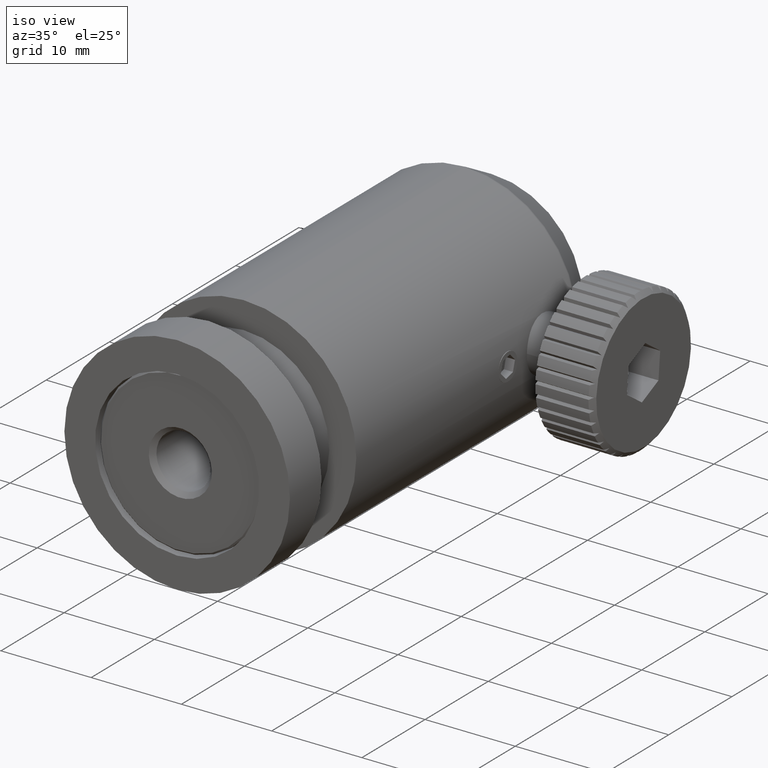
[diagram: clean part render]
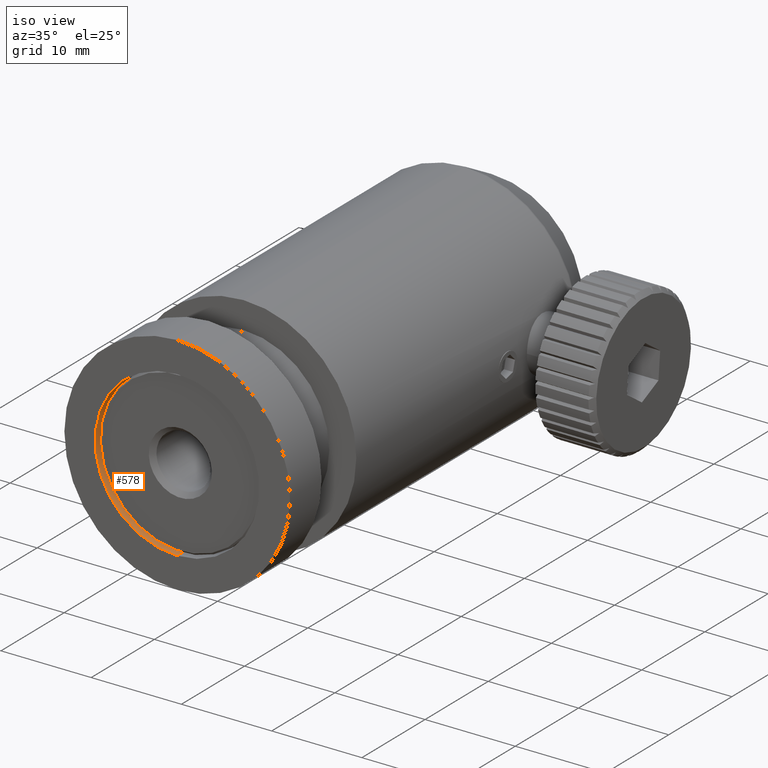
[diagram: same view with one face highlighted and labeled with its STEP entity id]
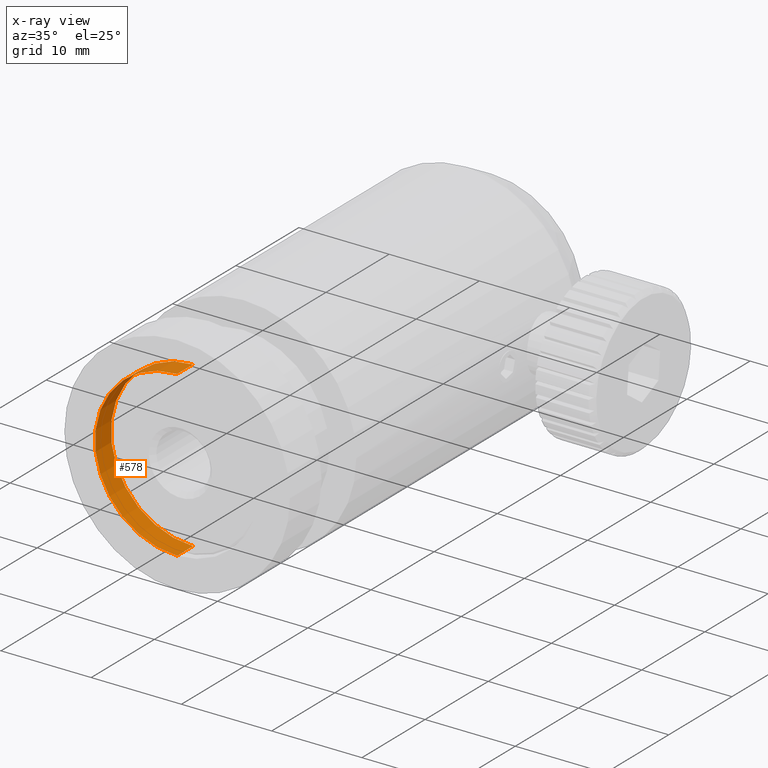
[diagram: x-ray of the same camera — body ghosted, the highlighted face saturated]
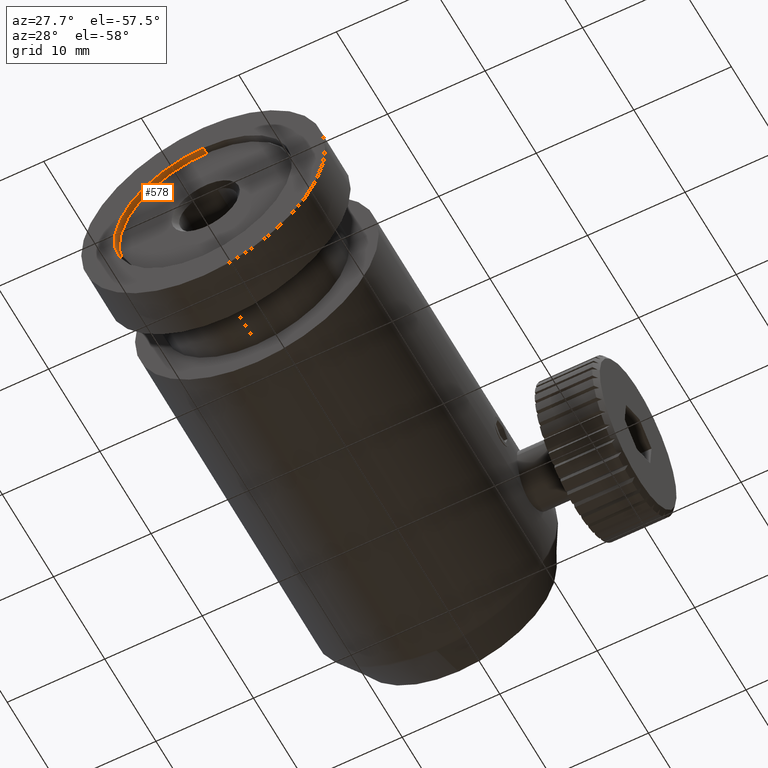
[diagram: same view with one face highlighted and labeled with its STEP entity id]
A machine part, iso view. The second image highlights one B-rep face of the part: STEP entity #578.
The next image is the same camera in x-ray: the body ghosted, the highlighted face saturated — about 0% of this face is hidden behind the body in this view.
A second angle (auxiliary view) of the same face is appended — the face is thin or edge-on in the first view.
In plain terms, the highlighted cylindrical surface (partial cylindrical patch) has radius 9.1 mm, axis along (-0, -1, -0).
Its self-contained STEP definition (entity closure, byte-faithful):
#126 = CARTESIAN_POINT ( 'NONE',  ( -3.204778668925409857, -9.313612059609836180, -9.099999999999999645 ) ) ;
#138 = EDGE_CURVE ( 'NONE', #6850, #979, #4255, .T. ) ;
#537 = CARTESIAN_POINT ( 'NONE',  ( -3.204778668925408525, -11.81361205960983796, 9.099999999999999645 ) ) ;
#578 = ADVANCED_FACE ( 'NONE', ( #1367 ), #5508, .F. ) ;
#713 = AXIS2_PLACEMENT_3D ( 'NONE', #4689, #7513, #1202 ) ;
#737 = CARTESIAN_POINT ( 'NONE',  ( -3.204778668925408525, -9.313612059609836180, 9.099999999999999645 ) ) ;
#870 = DIRECTION ( 'NONE',  ( -0.0000000000000000000, -1.000000000000000000, -0.0000000000000000000 ) ) ;
#979 = VERTEX_POINT ( 'NONE', #537 ) ;
#1106 = ORIENTED_EDGE ( 'NONE', *, *, #5831, .T. ) ;
#1202 = DIRECTION ( 'NONE',  ( 0.0000000000000000000, 0.0000000000000000000, -1.000000000000000000 ) ) ;
#1265 = AXIS2_PLACEMENT_3D ( 'NONE', #4152, #6905, #3376 ) ;
#1367 = FACE_OUTER_BOUND ( 'NONE', #7699, .T. ) ;
#2132 = VERTEX_POINT ( 'NONE', #126 ) ;
#2251 = LINE ( 'NONE', #3618, #8491 ) ;
#2325 = CIRCLE ( 'NONE', #713, 9.099999999999999645 ) ;
#2355 = VERTEX_POINT ( 'NONE', #8779 ) ;
#3322 = VECTOR ( 'NONE', #870, 1000.000000000000000 ) ;
#3376 = DIRECTION ( 'NONE',  ( 0.0000000000000000000, 0.0000000000000000000, -1.000000000000000000 ) ) ;
#3487 = CIRCLE ( 'NONE', #8643, 9.099999999999999645 ) ;
#3618 = CARTESIAN_POINT ( 'NONE',  ( -3.204778668925409857, -9.313612059609836180, -9.099999999999999645 ) ) ;
#4152 = CARTESIAN_POINT ( 'NONE',  ( -3.204778668925409857, -9.313612059609836180, -7.703719777548943412E-31 ) ) ;
#4255 = LINE ( 'NONE', #737, #3322 ) ;
#4429 = ORIENTED_EDGE ( 'NONE', *, *, #138, .T. ) ;
#4689 = CARTESIAN_POINT ( 'NONE',  ( -3.204778668925409857, -11.81361205960983796, -7.703719777548943412E-31 ) ) ;
#4947 = CARTESIAN_POINT ( 'NONE',  ( -3.204778668925408525, -9.313612059609836180, 9.099999999999999645 ) ) ;
#5038 = EDGE_CURVE ( 'NONE', #2132, #2355, #2251, .T. ) ;
#5325 = DIRECTION ( 'NONE',  ( 0.0000000000000000000, -1.000000000000000000, 0.0000000000000000000 ) ) ;
#5508 = CYLINDRICAL_SURFACE ( 'NONE', #1265, 9.099999999999999645 ) ;
#5831 = EDGE_CURVE ( 'NONE', #979, #2355, #2325, .T. ) ;
#5930 = CARTESIAN_POINT ( 'NONE',  ( -3.204778668925409857, -9.313612059609836180, -7.703719777548943412E-31 ) ) ;
#6112 = EDGE_CURVE ( 'NONE', #6850, #2132, #3487, .T. ) ;
#6503 = DIRECTION ( 'NONE',  ( -0.0000000000000000000, -1.000000000000000000, -0.0000000000000000000 ) ) ;
#6850 = VERTEX_POINT ( 'NONE', #4947 ) ;
#6905 = DIRECTION ( 'NONE',  ( -0.0000000000000000000, -1.000000000000000000, -0.0000000000000000000 ) ) ;
#7371 = ORIENTED_EDGE ( 'NONE', *, *, #5038, .F. ) ;
#7513 = DIRECTION ( 'NONE',  ( 0.0000000000000000000, -1.000000000000000000, 0.0000000000000000000 ) ) ;
#7673 = ORIENTED_EDGE ( 'NONE', *, *, #6112, .F. ) ;
#7699 = EDGE_LOOP ( 'NONE', ( #7673, #4429, #1106, #7371 ) ) ;
#8491 = VECTOR ( 'NONE', #6503, 1000.000000000000000 ) ;
#8643 = AXIS2_PLACEMENT_3D ( 'NONE', #5930, #5325, #8783 ) ;
#8779 = CARTESIAN_POINT ( 'NONE',  ( -3.204778668925409857, -11.81361205960983796, -9.099999999999999645 ) ) ;
#8783 = DIRECTION ( 'NONE',  ( 0.0000000000000000000, 0.0000000000000000000, -1.000000000000000000 ) ) ;